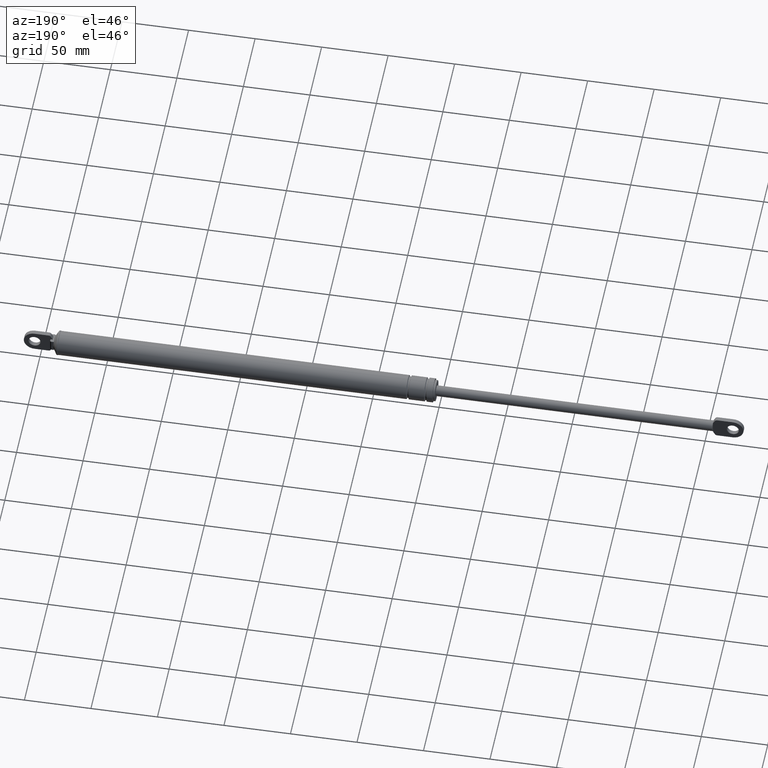
[diagram: clean part render]
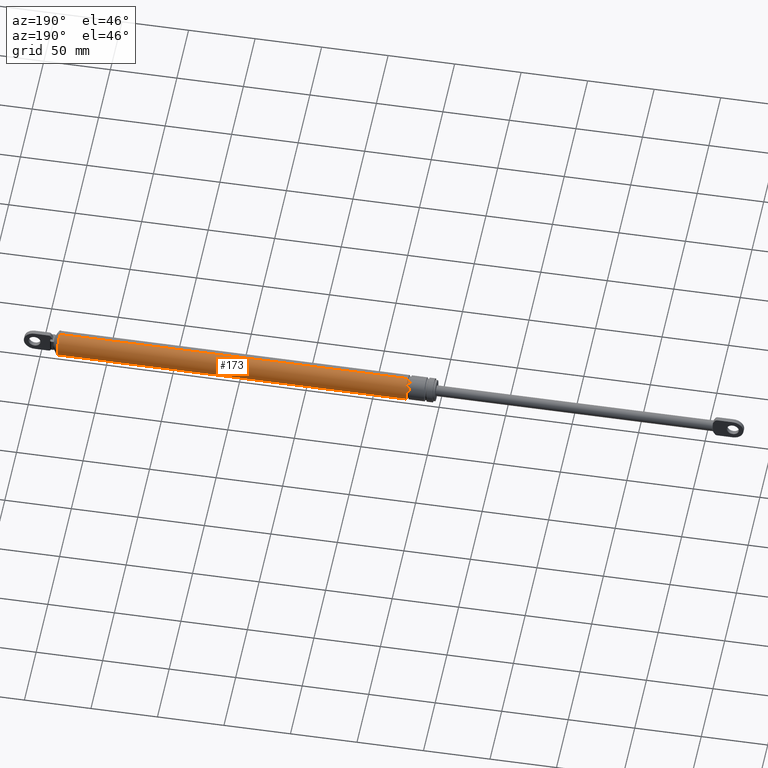
[diagram: same view with one face highlighted and labeled with its STEP entity id]
A machine part, auxiliary view. The second image highlights one B-rep face of the part: STEP entity #173.
In plain terms, the highlighted cylindrical surface (edge-blend (fillet) strip) has radius 9 mm, axis along (1, 0, 0).
Its self-contained STEP definition (entity closure, byte-faithful):
#173=ADVANCED_FACE('',(#819),#818,.T.);
#818=CYLINDRICAL_SURFACE('',#1689,9.00000000000E+000);
#819=FACE_OUTER_BOUND('',#1690,.T.);
#1686=CARTESIAN_POINT('',(0.00000000000E+000,0.00000000000E+000,2.06267818784E+002));
#1687=DIRECTION('',(1.00000000000E+000,-0.00000000000E+000,-0.00000000000E+000));
#1688=DIRECTION('',(-0.00000000000E+000,-0.00000000000E+000,-1.00000000000E+000));
#1689=AXIS2_PLACEMENT_3D('',#1686,#1687,#1688);
#1690=EDGE_LOOP('',(#2152,#2153,#2154,#2155));
#2152=ORIENTED_EDGE('',*,*,#2436,.T.);
#2153=ORIENTED_EDGE('',*,*,#2437,.F.);
#2154=ORIENTED_EDGE('',*,*,#2348,.F.);
#2155=ORIENTED_EDGE('',*,*,#2438,.T.);
#2348=EDGE_CURVE('',#2962,#2963,#2964,.T.);
#2436=EDGE_CURVE('',#3532,#3533,#3534,.T.);
#2437=EDGE_CURVE('',#2963,#3533,#3540,.T.);
#2438=EDGE_CURVE('',#2962,#3532,#3546,.T.);
#2962=VERTEX_POINT('',#4227);
#2963=VERTEX_POINT('',#4228);
#2964=CIRCLE('',#4232,9.00000000000E+000);
#3532=VERTEX_POINT('',#4620);
#3533=VERTEX_POINT('',#4621);
#3534=CIRCLE('',#4625,9.00000000000E+000);
#3540=(BOUNDED_CURVE() B_SPLINE_CURVE(1,(#4626,#4627),.UNSPECIFIED.,.F.,.F.) B_SPLINE_CURVE_WITH_KNOTS((2,2),(3.54798651303E-002,9.64520134830E-001),.UNSPECIFIED.) CURVE() GEOMETRIC_REPRESENTATION_ITEM() RATIONAL_B_SPLINE_CURVE((1.00000000000E+000,1.00000000000E+000)) REPRESENTATION_ITEM('') );
#3546=(BOUNDED_CURVE() B_SPLINE_CURVE(1,(#4628,#4629),.UNSPECIFIED.,.F.,.F.) B_SPLINE_CURVE_WITH_KNOTS((2,2),(3.54798651765E-002,9.64520134823E-001),.UNSPECIFIED.) CURVE() GEOMETRIC_REPRESENTATION_ITEM() RATIONAL_B_SPLINE_CURVE((7.50000000000E-001,7.50000000000E-001)) REPRESENTATION_ITEM('') );
#4227=CARTESIAN_POINT('',(1.73266930088E+002,0.00000000000E+000,2.15267818784E+002));
#4228=CARTESIAN_POINT('',(1.73266930088E+002,5.92118946467E-016,1.97267818784E+002));
#4229=CARTESIAN_POINT('',(1.73266930088E+002,0.00000000000E+000,2.06267818784E+002));
#4230=DIRECTION('',(-1.00000000000E+000,0.00000000000E+000,0.00000000000E+000));
#4231=DIRECTION('',(0.00000000000E+000,-1.22460635382E-016,1.00000000000E+000));
#4232=AXIS2_PLACEMENT_3D('',#4229,#4230,#4231);
#4620=CARTESIAN_POINT('',(4.35116930088E+002,0.00000000000E+000,2.15267818784E+002));
#4621=CARTESIAN_POINT('',(4.35116930088E+002,5.92118946467E-016,1.97267818784E+002));
#4622=CARTESIAN_POINT('',(4.35116930088E+002,0.00000000000E+000,2.06267818784E+002));
#4623=DIRECTION('',(-1.00000000000E+000,0.00000000000E+000,0.00000000000E+000));
#4624=DIRECTION('',(0.00000000000E+000,-1.22460635382E-016,1.00000000000E+000));
#4625=AXIS2_PLACEMENT_3D('',#4622,#4623,#4624);
#4626=CARTESIAN_POINT('',(1.73266930075E+002,0.00000000000E+000,1.97267818784E+002));
#4627=CARTESIAN_POINT('',(4.35116930090E+002,0.00000000000E+000,1.97267818784E+002));
#4628=CARTESIAN_POINT('',(1.73266930088E+002,-2.96059473233E-016,2.15267818784E+002));
#4629=CARTESIAN_POINT('',(4.35116930088E+002,-2.96059473233E-016,2.15267818784E+002));